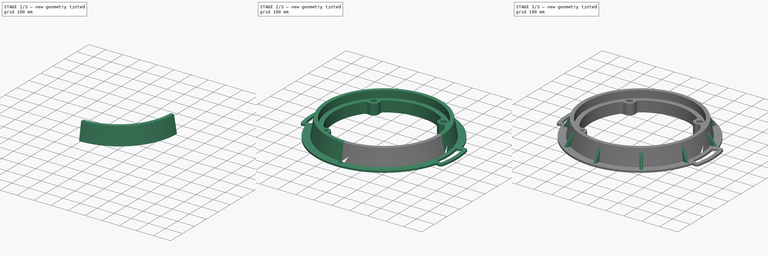
[diagram: build sequence overview — one tinted view per stage of 3, left to right]
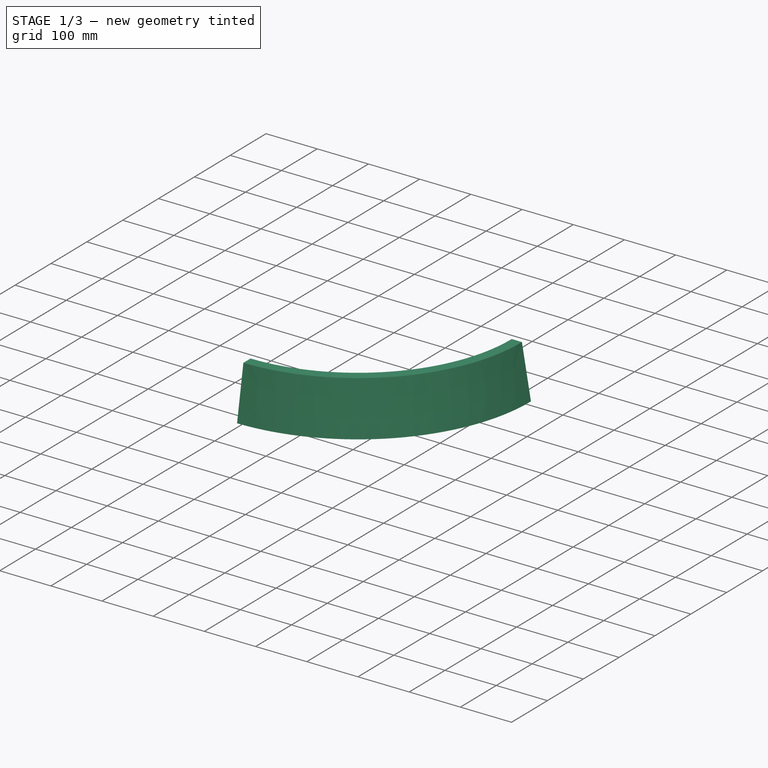
[diagram: stage 1 of 3 — iso view after this stage's code; geometry added in this stage tinted green]
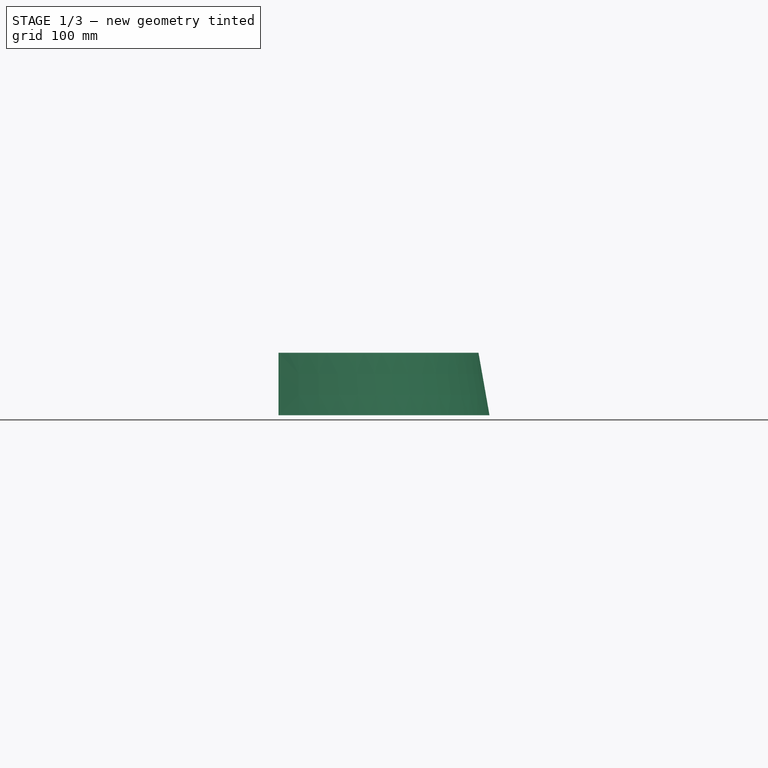
[diagram: stage 1 of 3 — front view after this stage's code; geometry added in this stage tinted green]
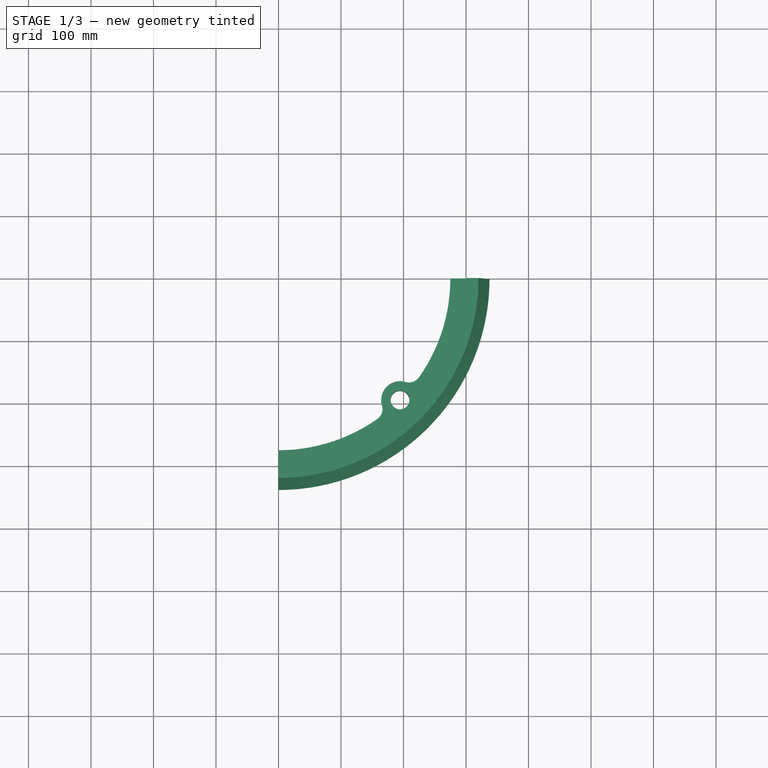
[diagram: stage 1 of 3 — top view after this stage's code; geometry added in this stage tinted green]
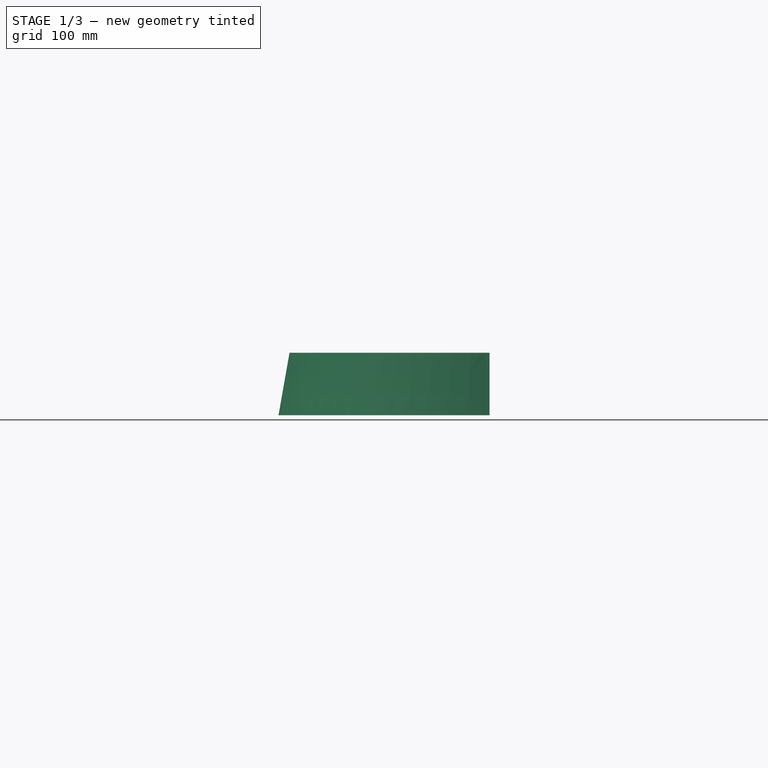
[diagram: stage 1 of 3 — right view after this stage's code; geometry added in this stage tinted green]
FCSTD DOCUMENT  (FreeCAD 1.0R39319 (Git))
Label: 25-VT-21-SewerCoverFrame
License: All rights reserved
LicenseURL: https://en.wikipedia.org/wiki/All_rights_reserved
objects: Sketcher::SketchObject×5, PartDesign::Pad×4, PartDesign::Mirrored×2, PartDesign::Revolution×1, PartDesign::Plane×1, PartDesign::MultiTransform×1, PartDesign::PolarPattern×1, PartDesign::Body×1
note: 35 computed .brp shape members not serialized (recipe doc carries the construction recipe); baked Part::Feature solids carry a one-line shape summary decoded from their .brp

FEATURE [Sketcher::SketchObject] Sketch
  ArcFitTolerance = 1e-06
  AttachmentSupport = -> [XY_Plane]
  FullyConstrained = false
  MakeInternals = false
  MapMode = 5
  sketch-geometry (10):
    g0: ArcOfCircle CenterX=0 CenterY=0 CenterZ=0 NormalX=0 NormalY=0 NormalZ=1 AngleXU=0 Radius=275 StartAngle=4.71239 EndAngle=5.32452
    g1: ArcOfCircle CenterX=0 CenterY=0 CenterZ=0 NormalX=0 NormalY=0 NormalZ=1 AngleXU=0 Radius=275 StartAngle=5.67105 EndAngle=6.28319
    g2: ArcOfCircle CenterX=194.454 CenterY=-194.454 CenterZ=0 NormalX=0 NormalY=0 NormalZ=1 AngleXU=0 Radius=30 StartAngle=1.28191 EndAngle=3.43048
    g3: ArcOfCircle CenterX=208.698 CenterY=-146.526 CenterZ=0 NormalX=0 NormalY=0 NormalZ=1 AngleXU=0 Radius=20 StartAngle=4.42351 EndAngle=5.67105
    g4: ArcOfCircle CenterX=146.526 CenterY=-208.698 CenterZ=0 NormalX=0 NormalY=0 NormalZ=1 AngleXU=0 Radius=20 StartAngle=5.32452 EndAngle=6.57207
    g5: Circle CenterX=194.454 CenterY=-194.454 CenterZ=0 NormalX=0 NormalY=0 NormalZ=1 AngleXU=0 Radius=15
    g6: ArcOfCircle CenterX=0 CenterY=0 CenterZ=0 NormalX=0 NormalY=0 NormalZ=1 AngleXU=0 Radius=300 StartAngle=4.71239 EndAngle=6.28319
    g7: LineSegment [constr] StartX=0 StartY=0 StartZ=0 EndX=381.611 EndY=-381.611 EndZ=0
    g8: LineSegment StartX=-5.05e-14 StartY=-275 StartZ=0 EndX=-5.51e-14 EndY=-300 EndZ=0
    g9: LineSegment StartX=275 StartY=-6.74e-14 StartZ=0 EndX=300 EndY=-7.35e-14 EndZ=0
  constraints (27):
    c: Coincident(g0,g-1)
    c: PointOnObject(g0,g-2)
    c: Coincident(g1,g0)
    c: PointOnObject(g1,g-1)
    c: Tangent(g3,g2) = 1.5708
    c: Tangent(g4,g2) = 1.5708
    c: Tangent(g3,g1) = -1.5708
    c: Tangent(g4,g0) = -1.5708
    c: Equal(g3,g4)
    c: Radius(g2) = 30
    c: Radius(g3) = 20
    c: Equal(g0,g1)
    c: Radius(g1) = 275
    c: PointOnObject(g2,g1)
    c: Coincident(g5,g2)
    c: Diameter(g5) = 30
    c: Coincident(g6,g0)
    c: PointOnObject(g6,g-1)
    c: PointOnObject(g6,g-2)
    c: Radius(g6) = 300
    c: Coincident(g7,g0)
    c: Angle(g-2,g7) = 0.785398
    c: PointOnObject(g2,g7)
    c: Coincident(g6,g9)
    c: Coincident(g9,g1)
    c: Coincident(g8,g6)
    c: Coincident(g0,g8)
FEATURE [PartDesign::Pad] Pad
  Direction = (0,0,1)
  Length = 60
  Length2 = 10
  Profile = -> Sketch
  ReferenceAxis = -> Sketch [N_Axis]
  Refine = true
  Suppressed = false
  Type = 0
FEATURE [Sketcher::SketchObject] Sketch001
  ArcFitTolerance = 1e-06
  AttachmentSupport = -> [XY_Plane]
  FullyConstrained = true
  MakeInternals = false
  MapMode = 5
  sketch-geometry (13):
    g0: ArcOfCircle CenterX=0 CenterY=0 CenterZ=0 NormalX=0 NormalY=0 NormalZ=1 AngleXU=0 Radius=375 StartAngle=4.71239 EndAngle=6.00812
    g1: ArcOfCircle CenterX=0 CenterY=0 CenterZ=0 NormalX=0 NormalY=0 NormalZ=1 AngleXU=0 Radius=335.87 StartAngle=4.71239 EndAngle=6.28319
    g2: ArcOfCircle CenterX=0 CenterY=0 CenterZ=0 NormalX=0 NormalY=0 NormalZ=1 AngleXU=0 Radius=355.87 StartAngle=6.08003 EndAngle=6.28319
    g3: ArcOfCircle CenterX=0 CenterY=0 CenterZ=0 NormalX=0 NormalY=0 NormalZ=1 AngleXU=0 Radius=385 StartAngle=6.07678 EndAngle=6.28319
    g4: ArcOfCircle CenterX=354.428 CenterY=-73.0103 CenterZ=0 NormalX=0 NormalY=0 NormalZ=1 AngleXU=0 Radius=6 StartAngle=2.93844 EndAngle=4.43733
    g5: ArcOfCircle CenterX=370.955 CenterY=-77.6745 CenterZ=0 NormalX=0 NormalY=0 NormalZ=1 AngleXU=0 Radius=6 StartAngle=4.43733 EndAngle=6.07678
    g6: ArcOfCircle CenterX=379.135 CenterY=-91.4128 CenterZ=0 NormalX=0 NormalY=0 NormalZ=1 AngleXU=0 Radius=15 StartAngle=4.43733 EndAngle=6.04659
    g7: ArcOfCircle CenterX=0 CenterY=0 CenterZ=0 NormalX=0 NormalY=0 NormalZ=1 AngleXU=0 Radius=405 StartAngle=6.04659 EndAngle=6.28319
    g8: LineSegment StartX=405 StartY=-9.92e-14 StartZ=0 EndX=385 EndY=-9.43e-14 EndZ=0
    g9: LineSegment StartX=355.87 StartY=-8.72e-14 StartZ=0 EndX=335.87 EndY=-8.23e-14 EndZ=0
    g10: LineSegment StartX=360.903 StartY=-101.853 StartZ=0 EndX=375.061 EndY=-105.849 EndZ=0
    g11: LineSegment StartX=352.799 StartY=-78.7848 StartZ=0 EndX=369.325 EndY=-83.4489 EndZ=0
    g12: LineSegment StartX=-6.17e-14 StartY=-335.87 StartZ=0 EndX=-6.89e-14 EndY=-375 EndZ=0
  constraints (36):
    c: Coincident(g0,g-1)
    c: PointOnObject(g0,g-2)
    c: Coincident(g1,g0)
    c: PointOnObject(g1,g-2)
    c: PointOnObject(g1,g-1)
    c: Diameter(g0) = 750
    c: Coincident(g2,g0)
    c: PointOnObject(g2,g-1)
    c: Coincident(g3,g0)
    c: PointOnObject(g3,g-1)
    c: Tangent(g2,g4) = 1.5708
    c: Equal(g5,g4)
    c: Tangent(g5,g3) = -1.5708
    c: Tangent(g6,g7) = -1.5708
    c: PointOnObject(g7,g-1)
    c: Coincident(g7,g8)
    c: Coincident(g8,g3)
    c: Coincident(g2,g9)
    c: Coincident(g7,g0)
    c: Equal(g8,g9)
    c: Coincident(g1,g9)
    c: DistanceX(g8,g8) = 20
    c: Coincident(g0,g10)
    c: Tangent(g10,g6) = -1.5708
    c: Tangent(g4,g11) = -1.5708
    c: Tangent(g11,g5) = -1.5708
    c: Parallel(g10,g11)
    c: Distance(g0,g11) = 20
    c: PointOnObject(g0,g10)
    c: Angle(g10,g-1) = 0.275064
    c: Radius(g7) = 405
    c: Radius(g6) = 15
    c: Radius(g5) = 6
    c: Coincident(g1,g12)
    c: Coincident(g0,g12)
    c: Radius(g1) = 335.87
FEATURE [Sketcher::SketchObject] Sketch002
  ArcFitTolerance = 1e-06
  AttachmentSupport = -> [YZ_Plane]
  FullyConstrained = true
  MakeInternals = false
  MapMode = 5
  Placement = pos=(0,0,0) rot=(0.57735,0.57735,0.57735;2.0944rad)
  sketch-geometry (5):
    g0: LineSegment StartX=-320 StartY=100 StartZ=0 EndX=-300 EndY=100 EndZ=0
    g1: LineSegment StartX=-300 StartY=100 StartZ=0 EndX=-300 EndY=0 EndZ=0
    g2: LineSegment StartX=-300 StartY=0 StartZ=0 EndX=-337.633 EndY=0 EndZ=0
    g3: LineSegment StartX=-337.633 StartY=0 StartZ=0 EndX=-320 EndY=100 EndZ=0
    g4: GeomPoint X=-335.869 Y=10 Z=0
  constraints (15):
    c: Coincident(g0,g1)
    c: PointOnObject(g1,g-1)
    c: Vertical(g1)
    c: Coincident(g1,g2)
    c: PointOnObject(g2,g-1)
    c: Coincident(g2,g3)
    c: Coincident(g3,g0)
    c: Horizontal(g0)
    c: Angle(g3,g1) = 0.174533
    c: DistanceX(g0,g0) = 20
    c: DistanceX(g1) = -300
    c: DistanceY(g1,g1) = 100
    c: PointOnObject(g4,g3)
    c: DistanceY(g2,g4) = 10
    c: DistanceX(g4) = -335.869
FEATURE [PartDesign::Revolution] Revolution
  Angle = 90
  Angle2 = 60
  Axis = (1e-16,1e-16,1)
  Base = (0,0,0)
  BaseFeature = -> Pad
  Profile = -> Sketch002
  ReferenceAxis = -> Z_Axis
  Refine = true
  Suppressed = false
  Type = 0
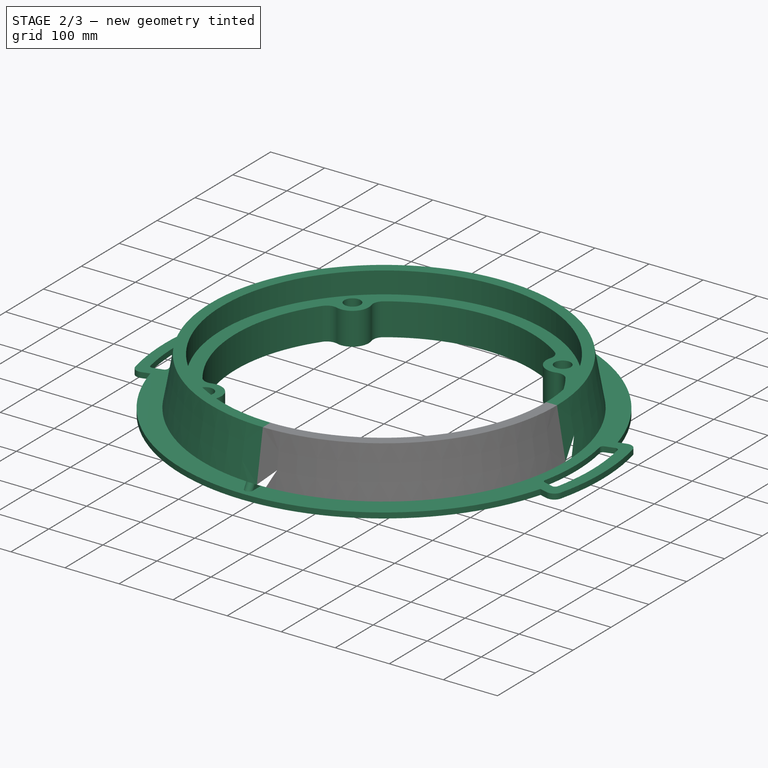
[diagram: stage 2 of 3 — iso view after this stage's code; geometry added in this stage tinted green]
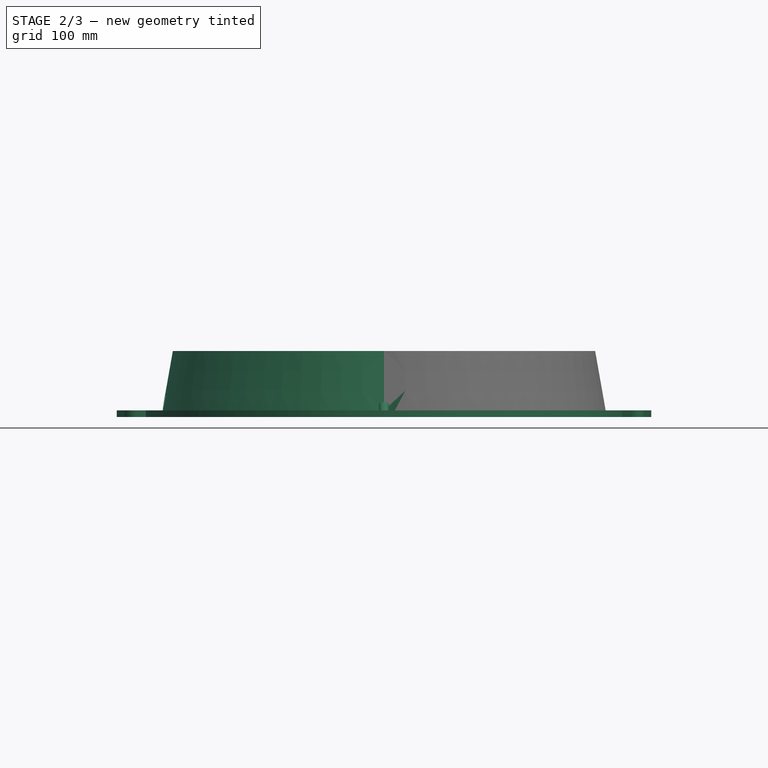
[diagram: stage 2 of 3 — front view after this stage's code; geometry added in this stage tinted green]
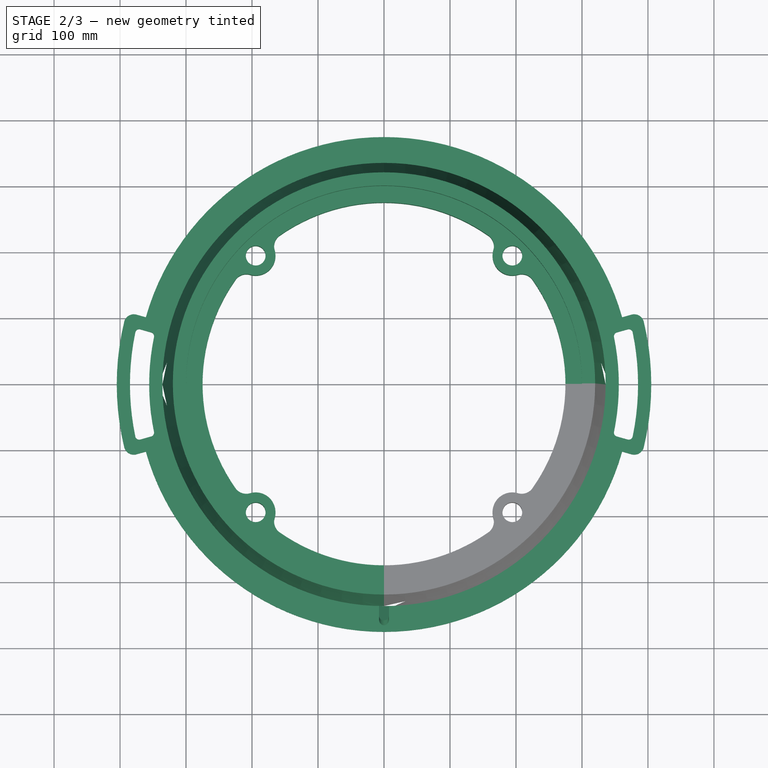
[diagram: stage 2 of 3 — top view after this stage's code; geometry added in this stage tinted green]
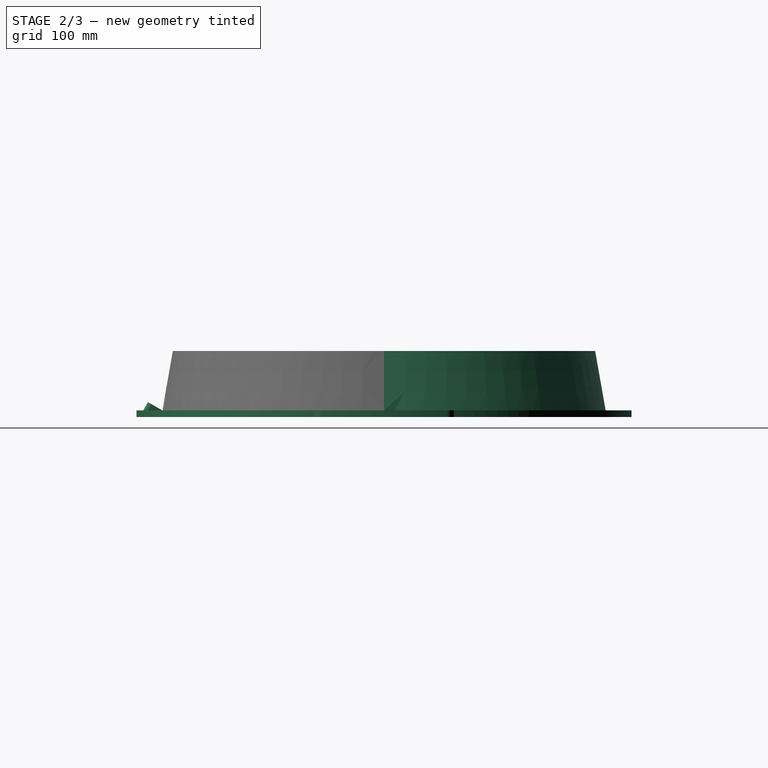
[diagram: stage 2 of 3 — right view after this stage's code; geometry added in this stage tinted green]
FEATURE [PartDesign::Pad] Pad001
  BaseFeature = -> Revolution
  Direction = (0,0,1)
  Length = 10
  Length2 = 10
  Profile = -> Sketch001
  ReferenceAxis = -> Sketch001 [N_Axis]
  Refine = true
  Suppressed = false
  Type = 0
FEATURE [Sketcher::SketchObject] Sketch004
  ArcFitTolerance = 1e-06
  AttachmentOffset = pos=(0,10,0) rot=(0,0,1;0rad)
  AttachmentSupport = -> [YZ_Plane]
  FullyConstrained = true
  MakeInternals = false
  MapMode = 5
  Placement = pos=(0,0,10) rot=(0.57735,0.57735,0.57735;2.0944rad)
  sketch-geometry (4):
    g0: LineSegment StartX=-365 StartY=0 StartZ=0 EndX=-323.061 EndY=72.6406 EndZ=0
    g1: LineSegment StartX=-320 StartY=90 StartZ=0 EndX=-335.869 EndY=0 EndZ=0
    g2: GeomPoint X=-375 Y=0 Z=0
    g3: LineSegment StartX=-335.869 StartY=0 StartZ=0 EndX=-357.717 EndY=12.6139 EndZ=0
  constraints (13):
    c: PointOnObject(g0,g-1)
    c: PointOnObject(g1,g-1)
    c: PointOnObject(g0,g1)
    c: DistanceY(g1) = 90
    c: DistanceX(g1) = -320
    c: PointOnObject(g2,g-1)
    c: DistanceX(g2) = -375
    c: DistanceX(g2,g0) = 10
    c: Angle(g0) = 1.0472
    c: Angle(g1) = -1.74533
    c: Coincident(g1,g3)
    c: PointOnObject(g3,g0)
    c: Perpendicular(g0,g3)
FEATURE [PartDesign::Plane] DatumPlane
  AttachmentSupport = -> [Sketch004]
  Length = 961.886
  MapMode = 7
  Placement = pos=(0,-357.717,22.6139) rot=(1,0,0;2.61799rad)
  ResizeMode = 0
  Width = 863.905
FEATURE [PartDesign::Mirrored] Mirrored
  MirrorPlane = -> XZ_Plane
  Refine = true
  Suppressed = false
  TransformMode = 0
FEATURE [PartDesign::Mirrored] Mirrored001
  MirrorPlane = -> YZ_Plane
  Refine = true
  Suppressed = false
  TransformMode = 0
FEATURE [PartDesign::MultiTransform] MultiTransform
  BaseFeature = -> Pad001
  Originals = -> [Pad001]
  Refine = true
  Suppressed = false
  TransformMode = 1
  Transformations = -> [Mirrored,Mirrored001]
FEATURE [Sketcher::SketchObject] Sketch005
  ArcFitTolerance = 1e-06
  AttachmentSupport = -> [DatumPlane]
  ExternalGeometry = -> [MultiTransform]
  FullyConstrained = true
  MakeInternals = false
  MapMode = 5
  Placement = pos=(0,-357.717,22.6139) rot=(1,0,0;2.61799rad)
  sketch-geometry (4):
    g0: LineSegment StartX=7.5 StartY=-25.3015 StartZ=0 EndX=7.5 EndY=-7.5 EndZ=0
    g1: ArcOfCircle CenterX=0 CenterY=-7.5 CenterZ=0 NormalX=0 NormalY=0 NormalZ=1 AngleXU=0 Radius=7.5 StartAngle=1.8e-15 EndAngle=3.14159
    g2: LineSegment StartX=-7.5 StartY=-7.5 StartZ=0 EndX=-7.5 EndY=-25.3015 EndZ=0
    g3: ArcOfCircle CenterX=2.126e-13 CenterY=-316.101 CenterZ=0 NormalX=0 NormalY=0 NormalZ=1 AngleXU=0 Radius=290.896 StartAngle=1.54501 EndAngle=1.59658
  constraints (11):
    c: Tangent(g0,g1) = -1.5708
    c: Tangent(g1,g2) = -1.5708
    c: Parallel(g2,g0)
    c: Equal(g2,g0)
    c: Distance(g2,g0) = 15
    c: PointOnObject(g-1,g1)
    c: PointOnObject(g1,g-2)
    c: PointOnObject(g0,g-3)
    c: Coincident(g3,g-3)
    c: Coincident(g3,g2)
    c: Coincident(g3,g0)
FEATURE [PartDesign::Pad] Pad002
  BaseFeature = -> MultiTransform
  Direction = (0,-0.5,-0.866025)
  Length = 10
  Length2 = 10
  Profile = -> Sketch005
  ReferenceAxis = -> Sketch005 [N_Axis]
  Refine = true
  Suppressed = false
  Type = 5
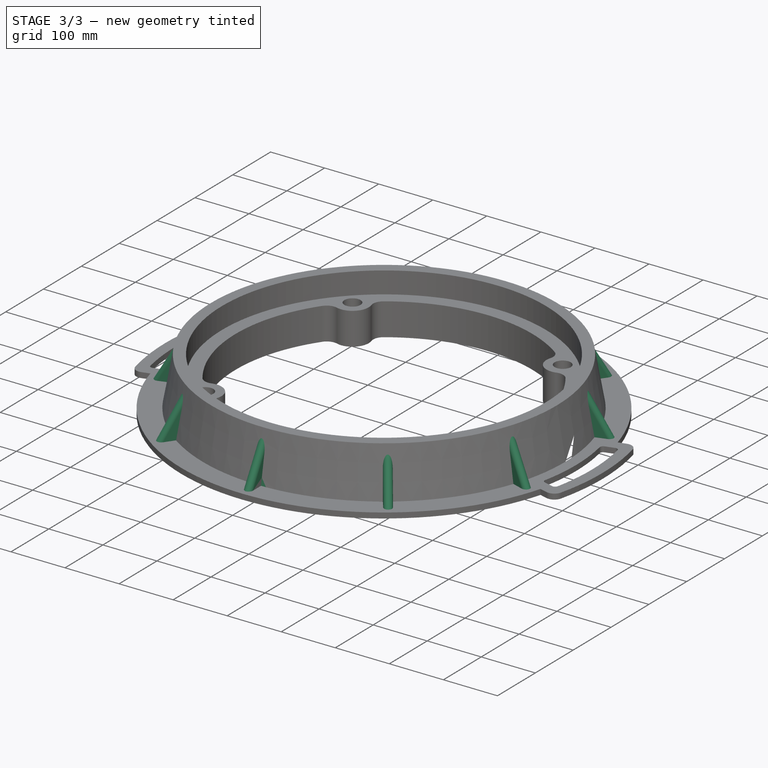
[diagram: stage 3 of 3 — iso view after this stage's code; geometry added in this stage tinted green]
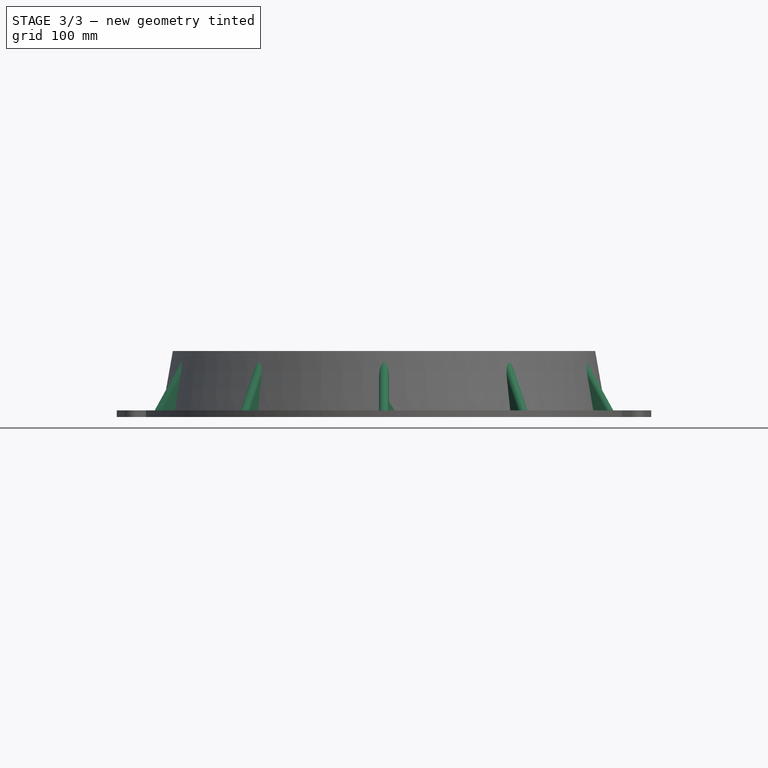
[diagram: stage 3 of 3 — front view after this stage's code; geometry added in this stage tinted green]
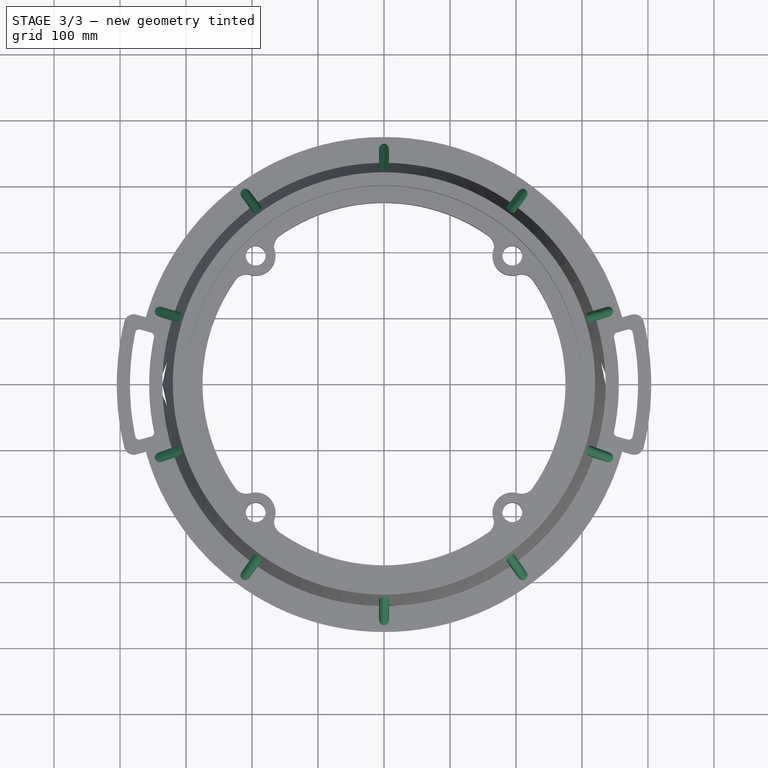
[diagram: stage 3 of 3 — top view after this stage's code; geometry added in this stage tinted green]
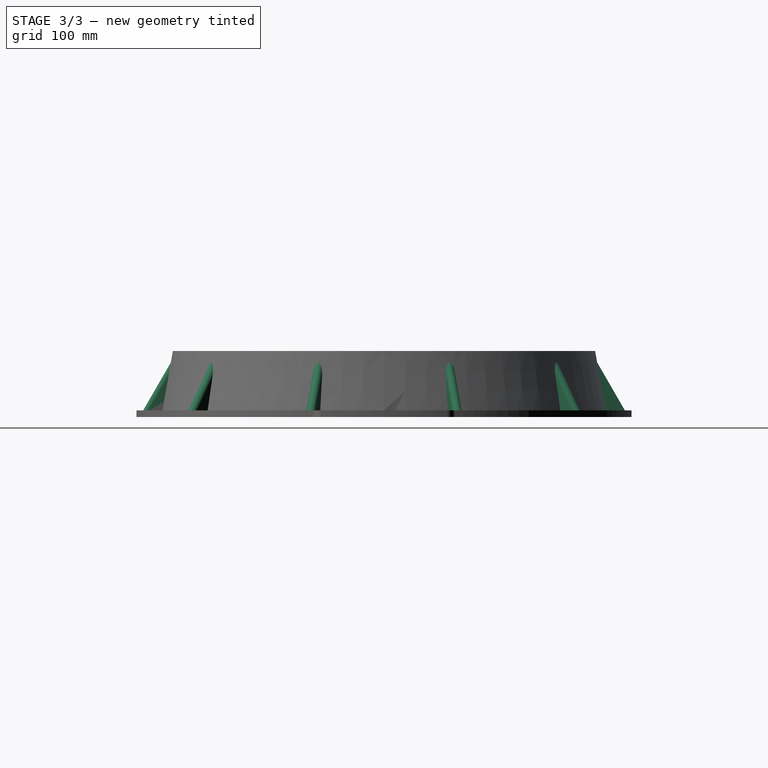
[diagram: stage 3 of 3 — right view after this stage's code; geometry added in this stage tinted green]
FEATURE [PartDesign::Pad] Pad003
  BaseFeature = -> Pad002
  Direction = (6e-16,0.5,0.866025)
  Length = 10
  Length2 = 10
  Profile = -> Pad002 [Face51]
  Refine = true
  Suppressed = false
  Type = 5
FEATURE [PartDesign::PolarPattern] PolarPattern
  Angle = 360
  Axis = -> Z_Axis
  BaseFeature = -> Pad003
  Mode = 0
  Occurrences = 10
  Offset = 120
  Originals = -> [Pad002,Pad003]
  Refine = true
  Suppressed = false
  TransformMode = 0
FEATURE [PartDesign::Body] Body
  AllowCompound = false
  Group = -> [Sketch,Pad,Sketch001,Sketch002,Revolution,Pad001,MultiTransform,Sketch004,DatumPlane,Sketch005,Mirrored,Mirrored001,Pad002,Pad003,PolarPattern]
  Origin = -> Origin
  Tip = -> PolarPattern
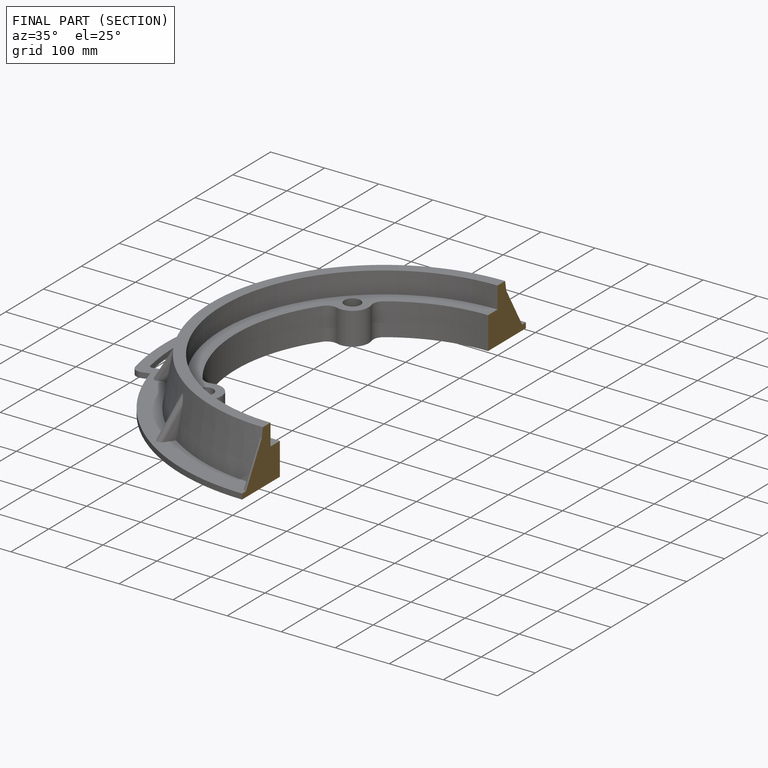
[diagram: finished part — half-section view (interior)]
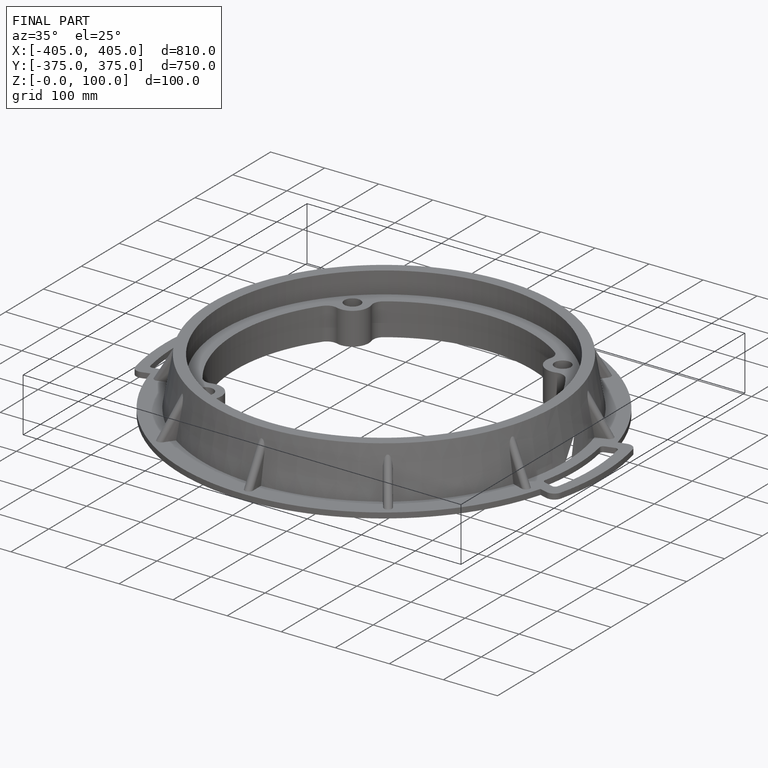
[diagram: finished part — iso view with bounding-box wireframe]
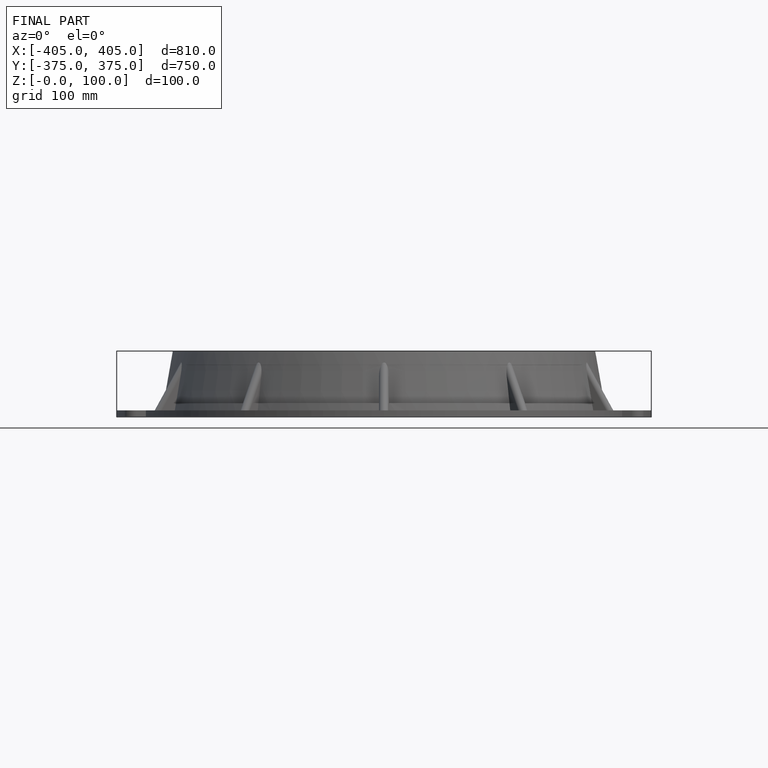
[diagram: finished part — front view with bounding-box wireframe]
